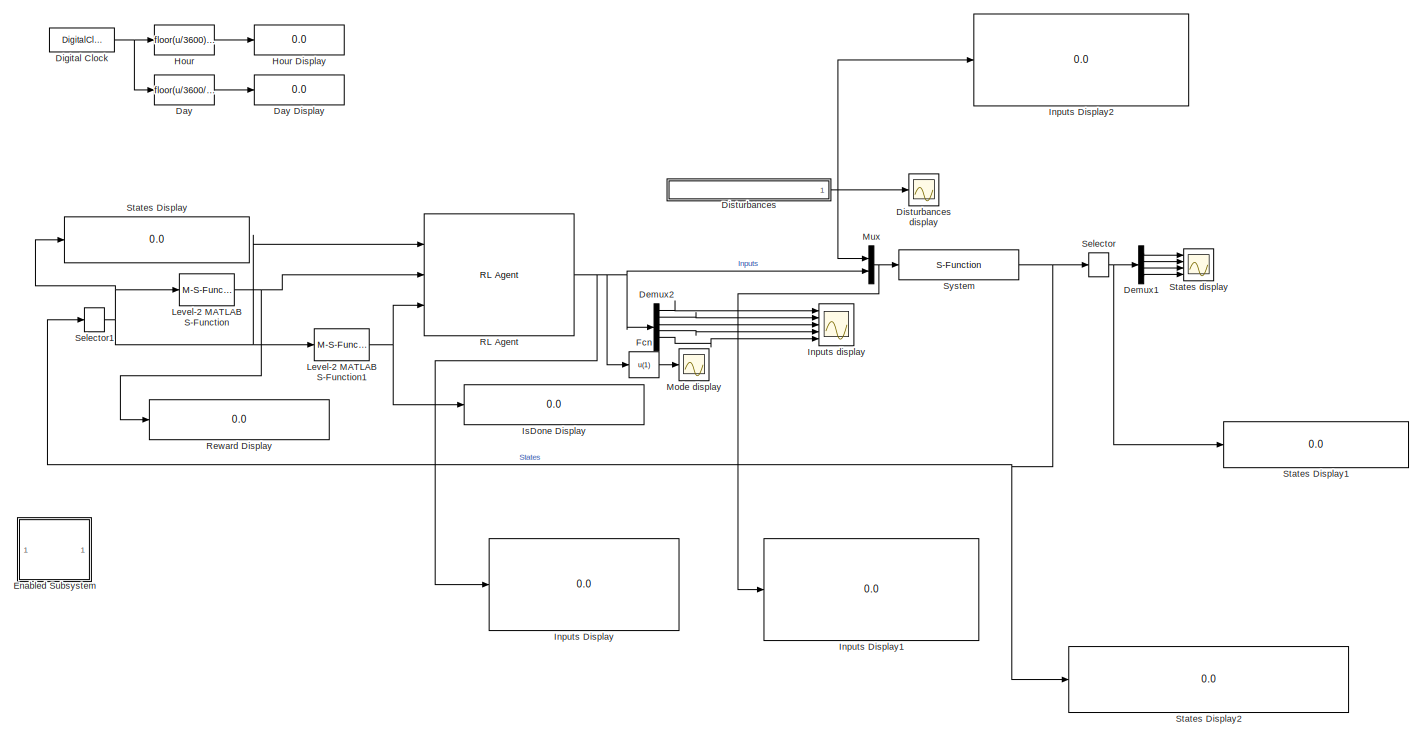
[diagram: root canvas - part 1/2, most of the canvas]
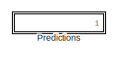
[diagram: root canvas - part 2/2, bottom left region]
MODEL slx_7f4d27680497
KIND model
CONFIG AbsTol = auto
CONFIG EnableMultiTasking = on
CONFIG FixedStep = 2
CONFIG MaxStep = auto
CONFIG MinStep = auto
CONFIG RelTol = 1e-3
CONFIG SampleTimeConstraint = Unconstrained
CONFIG SolverName = ode45
CONFIG StartTime = 0.0
CONFIG StopTime = 3600*24*(simulation_days-2)
BLOCK [Fcn] Day
  Expr = floor(u/3600/24)+1
  SampleTime = 1800
BLOCK [Display] Day Display
  Decimation = 1
  Ports = [1]
BLOCK [Demux] Demux1
  Ports = [1, 4]
BLOCK [Demux] Demux2
  Outputs = 6
  Ports = [1, 6]
BLOCK [DigitalClock] Digital Clock
  SampleTime = 60
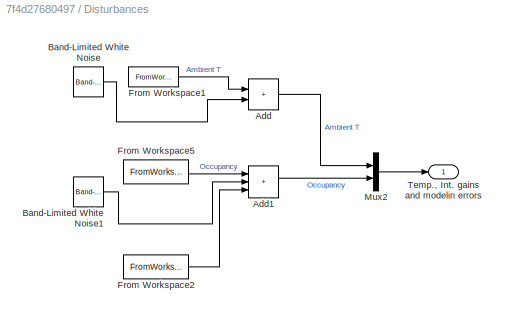
BLOCK [SubSystem] Disturbances
  Ports = [0, 1]
  RequestExecContextInheritance = off
  TreatAsAtomicUnit = on
BLOCK [Scope] Disturbances display
  Floating = off
  NumInputPorts = 1
  Ports = [1]
  ScopeSpecificationString = Simulink.scopes.TimeScopeBlockCfg('CurrentConfiguration', extmgr.ConfigurationSet(extmgr.Configuration('Core','General UI',true),extmgr.Configuration('Core','Source UI',true),extmgr.Configuration('Sources','WiredSimulink',true,'DataLogging',true,'DataLoggingVariableName','dist','DataLoggingSaveFormat','StructureWithTime','DataLoggingDecimation','1','DataLoggingDecimateData',true),extmgr.Configurat...<+1875ch>
BLOCK [Sum] Disturbances/Add
  IconShape = rectangular
  Ports = [2, 1]
BLOCK [Sum] Disturbances/Add1
  IconShape = rectangular
  Inputs = +++
  Ports = [3, 1]
BLOCK [Reference] Disturbances/Band-Limited White Noise  REF=simulink/Sources/Band-Limited
White Noise
  Ports = [0, 1]
  SourceBlock = simulink/Sources/Band-Limited\nWhite Noise
  SourceProductBaseCode = SL
  SourceType = Band-Limited White Noise.
BLOCK [Reference] Disturbances/Band-Limited White Noise1  REF=simulink/Sources/Band-Limited
White Noise
  Ports = [0, 1]
  SourceBlock = simulink/Sources/Band-Limited\nWhite Noise
  SourceProductBaseCode = SL
  SourceType = Band-Limited White Noise.
BLOCK [FromWorkspace] Disturbances/From Workspace1
  OutDataTypeStr = double
  SampleTime = sampling_time
  VariableName = Ts_struct
  ZeroCross = off
BLOCK [FromWorkspace] Disturbances/From Workspace2
  OutDataTypeStr = double
  SampleTime = sampling_time
  VariableName = w_struct
  ZeroCross = off
BLOCK [FromWorkspace] Disturbances/From Workspace5
  OutDataTypeStr = double
  SampleTime = sampling_time
  VariableName = Pds_struct
  ZeroCross = off
BLOCK [Mux] Disturbances/Mux2
  DisplayOption = bar
  Inputs = 2
  Ports = [2, 1]
BLOCK [Outport] Disturbances/Temp., Int. gains and modelin errors
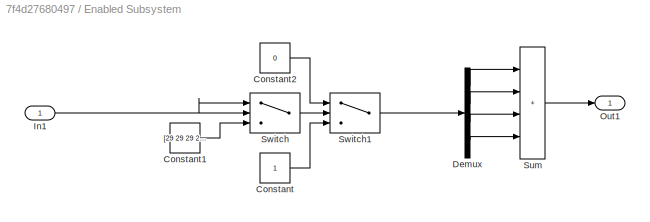
BLOCK [SubSystem] Enabled Subsystem
  Commented = on
  Ports = [1, 1]
  RequestExecContextInheritance = off
  TreatAsAtomicUnit = on
BLOCK [Constant] Enabled Subsystem/Constant
BLOCK [Constant] Enabled Subsystem/Constant1
  Value = [29 29 29 29]
BLOCK [Constant] Enabled Subsystem/Constant2
  Value = 0
BLOCK [Demux] Enabled Subsystem/Demux
  Ports = [1, 4]
BLOCK [Inport] Enabled Subsystem/In1
BLOCK [Outport] Enabled Subsystem/Out1
BLOCK [Sum] Enabled Subsystem/Sum
  IconShape = rectangular
  Inputs = |++++
  Ports = [4, 1]
BLOCK [Switch] Enabled Subsystem/Switch
  InputSameDT = off
  SaturateOnIntegerOverflow = off
  Threshold = [20 20 20 20]
BLOCK [Switch] Enabled Subsystem/Switch1
  Criteria = u2 > Threshold
  InputSameDT = off
  SaturateOnIntegerOverflow = off
  Threshold = [23 23 23 23]
BLOCK [Fcn] Fcn
  Expr = u(1)
BLOCK [Fcn] Hour
  Expr = floor(u/3600)-floor(u/3600/24)*24
  SampleTime = 1800
BLOCK [Display] Hour Display
  Decimation = 1
  Ports = [1]
BLOCK [Display] Inputs Display
  Decimation = 1
  Ports = [1]
BLOCK [Display] Inputs Display1
  Decimation = 1
  Ports = [1]
BLOCK [Display] Inputs Display2
  Decimation = 1
  Ports = [1]
BLOCK [Scope] Inputs display
  Floating = off
  NumInputPorts = 5
  Ports = [5]
  ScopeSpecificationString = Simulink.scopes.TimeScopeBlockCfg('CurrentConfiguration', extmgr.ConfigurationSet(extmgr.Configuration('Core','General UI',true),extmgr.Configuration('Core','Source UI',true),extmgr.Configuration('Sources','WiredSimulink',true,'DataLogging',true,'DataLoggingVariableName','inputs','DataLoggingSaveFormat','StructureWithTime','DataLoggingDecimation','1','DataLoggingDecimateData',true),extmgr.Configur...<+4510ch>
BLOCK [Display] IsDone Display
  Decimation = 1
  Ports = [1]
BLOCK [M-S-Function] Level-2 MATLAB S-Function
  FunctionName = reward
  Ports = [1, 1]
BLOCK [M-S-Function] Level-2 MATLAB S-Function1
  FunctionName = isDone
  Ports = [1, 1]
BLOCK [Scope] Mode display
  Floating = off
  NumInputPorts = 1
  Ports = [1]
  ScopeSpecificationString = C++SS(StrPVP('Location','[16, 77, 712, 582]'),StrPVP('Open','off'),StrPVP('ZoomMode','xonly'),MxPVP('AxesTitles',54,'struct(''axes1'',''%<SignalLabel>'')'),MxPVP('ScopeGraphics',57,'struct(''FigureColor'',''[0.501960784313725 0.501960784313725 0.501960784313725]'',''AxesColor'',''[0 0 0]'',''AxesTickColor'',''[1 1 1]'',''LineColors'',''[1 1 0;1 0 1;0 1 1;1 0 0;0 1 0;0 0 1]'',''LineStyles'',''-|-|-...<+434ch>
BLOCK [Mux] Mux
  DisplayOption = bar
  Inputs = 2
  Ports = [2, 1]
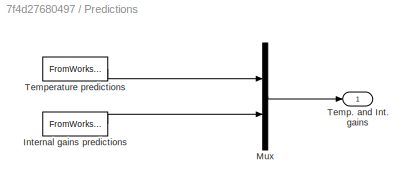
BLOCK [SubSystem] Predictions
  Commented = on
  Ports = [0, 1]
  RequestExecContextInheritance = off
  TreatAsAtomicUnit = on
BLOCK [FromWorkspace] Predictions/Internal gains predictions
  OutDataTypeStr = double
  SampleTime = up.DeltaT
  VariableName = Pds_pred_struct
  ZeroCross = off
BLOCK [Mux] Predictions/Mux
  DisplayOption = bar
  Inputs = 2
  Ports = [2, 1]
BLOCK [Outport] Predictions/Temp. and Int. gains
BLOCK [FromWorkspace] Predictions/Temperature predictions
  OutDataTypeStr = double
  SampleTime = up.DeltaT
  VariableName = Ts_pred_struct
  ZeroCross = off
BLOCK [Reference] RL Agent  REF=rllib/RL Agent
  Ports = [3, 1]
  SourceBlock = rllib/RL Agent
  SourceProductBaseCode = RL
  SourceType = RL Agent
BLOCK [Display] Reward Display
  Decimation = 1
  Ports = [1]
BLOCK [Selector] Selector
  IndexOptions = Index vector (dialog)
  Indices = [1 2 3 4]
  InputPortWidth = 8
  OutputSizes = 1
  Ports = [1, 1]
BLOCK [Selector] Selector1
  IndexOptions = Index vector (dialog)
  Indices = [1 2 3 4]
  InputPortWidth = 8
  OutputSizes = 1
  Ports = [1, 1]
BLOCK [Display] States Display
  Decimation = 1
  Ports = [1]
BLOCK [Display] States Display1
  Decimation = 1
  Ports = [1]
BLOCK [Display] States Display2
  Decimation = 1
  Ports = [1]
BLOCK [Scope] States display
  Floating = off
  NumInputPorts = 4
  Ports = [4]
  ScopeSpecificationString = Simulink.scopes.TimeScopeBlockCfg('CurrentConfiguration', extmgr.ConfigurationSet(extmgr.Configuration('Core','General UI',true),extmgr.Configuration('Core','Source UI',true),extmgr.Configuration('Sources','WiredSimulink',true,'DataLogging',true,'DataLoggingVariableName','states','DataLoggingSaveFormat','StructureWithTime','DataLoggingDecimation','1','DataLoggingDecimateData',true),extmgr.Configur...<+3826ch>
BLOCK [S-Function] System
  EnableBusSupport = off
  FunctionName = maborrelli_sfunc_nzones
  Parameters = ci,paramsnz
  Ports = [1, 1]
  SFcnIsStateOwnerBlock = off
  SFunctionDeploymentMode = off
LINE Day:1 -> Day Display:1
LINE Demux1:1 -> States display:1
LINE Demux1:2 -> States display:2
LINE Demux1:3 -> States display:3
LINE Demux1:4 -> States display:4
LINE Demux2:1 -> Inputs display:1
LINE Demux2:2 -> Inputs display:2
LINE Demux2:3 -> Inputs display:3
LINE Demux2:4 -> Inputs display:4
LINE Demux2:5 -> Inputs display:5
NET Digital Clock:1 -> Day:1, Hour:1
LINE Disturbances/Add1:1 -> Disturbances/Mux2:2
LINE Disturbances/Add:1 -> Disturbances/Mux2:1
LINE Disturbances/Band-Limited White Noise1:1 -> Disturbances/Add1:2
LINE Disturbances/Band-Limited White Noise:1 -> Disturbances/Add:2
LINE Disturbances/From Workspace1:1 -> Disturbances/Add:1
LINE Disturbances/From Workspace2:1 -> Disturbances/Add1:3
LINE Disturbances/From Workspace5:1 -> Disturbances/Add1:1
LINE Disturbances/Mux2:1 -> Disturbances/Temp., Int. gains and modelin errors:1
NET Disturbances:1 -> Disturbances display:1, Inputs Display2:1, Mux:1
LINE Enabled Subsystem/Constant1:1 -> Enabled Subsystem/Switch:3
LINE Enabled Subsystem/Constant2:1 -> Enabled Subsystem/Switch1:1
LINE Enabled Subsystem/Constant:1 -> Enabled Subsystem/Switch1:3
LINE Enabled Subsystem/Demux:1 -> Enabled Subsystem/Sum:1
LINE Enabled Subsystem/Demux:2 -> Enabled Subsystem/Sum:2
LINE Enabled Subsystem/Demux:3 -> Enabled Subsystem/Sum:3
LINE Enabled Subsystem/Demux:4 -> Enabled Subsystem/Sum:4
NET Enabled Subsystem/In1:1 -> Enabled Subsystem/Switch:1, Enabled Subsystem/Switch:2
LINE Enabled Subsystem/Sum:1 -> Enabled Subsystem/Out1:1
LINE Enabled Subsystem/Switch1:1 -> Enabled Subsystem/Demux:1
LINE Enabled Subsystem/Switch:1 -> Enabled Subsystem/Switch1:2
LINE Fcn:1 -> Mode display:1
LINE Hour:1 -> Hour Display:1
NET Level-2 MATLAB S-Function1:1 -> IsDone Display:1, RL Agent:3
NET Level-2 MATLAB S-Function:1 -> RL Agent:2, Reward Display:1
NET Mux:1 -> Inputs Display1:1, System:1
LINE Predictions/Internal gains predictions:1 -> Predictions/Mux:2
LINE Predictions/Mux:1 -> Predictions/Temp. and Int. gains:1
LINE Predictions/Temperature predictions:1 -> Predictions/Mux:1
NET RL Agent:1 -> Demux2:1, Fcn:1, Inputs Display:1, Mux:2
NET Selector1:1 -> Level-2 MATLAB S-Function1:1, Level-2 MATLAB S-Function:1, RL Agent:1, States Display:1
NET Selector:1 -> Demux1:1, States Display1:1
NET System:1 -> Selector1:1, Selector:1, States Display2:1
note: NET lines group one-source signal fan-out (src -> all destinations, sorted); 1:1 wires keep LINE
